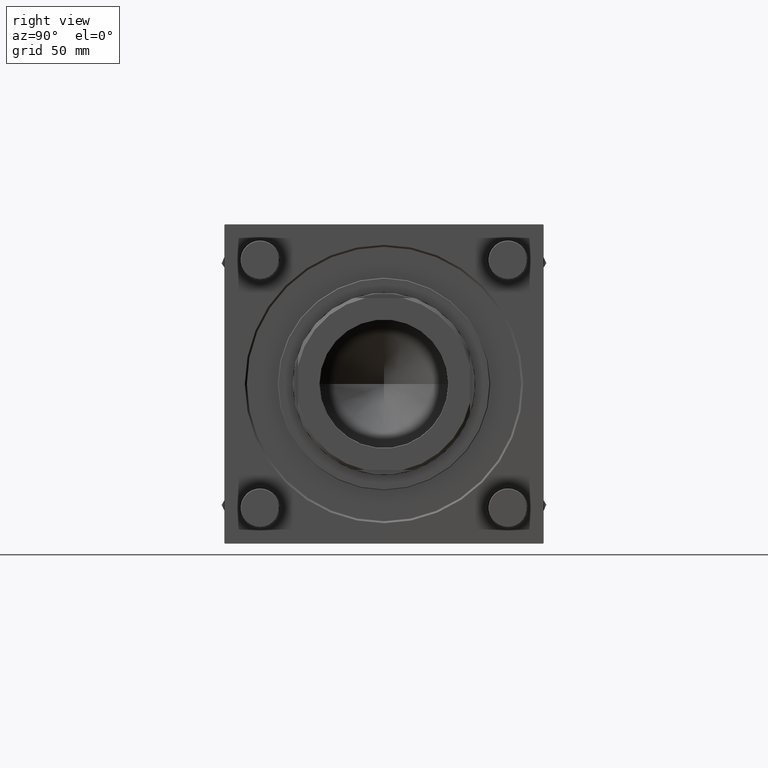
[diagram: clean part render]
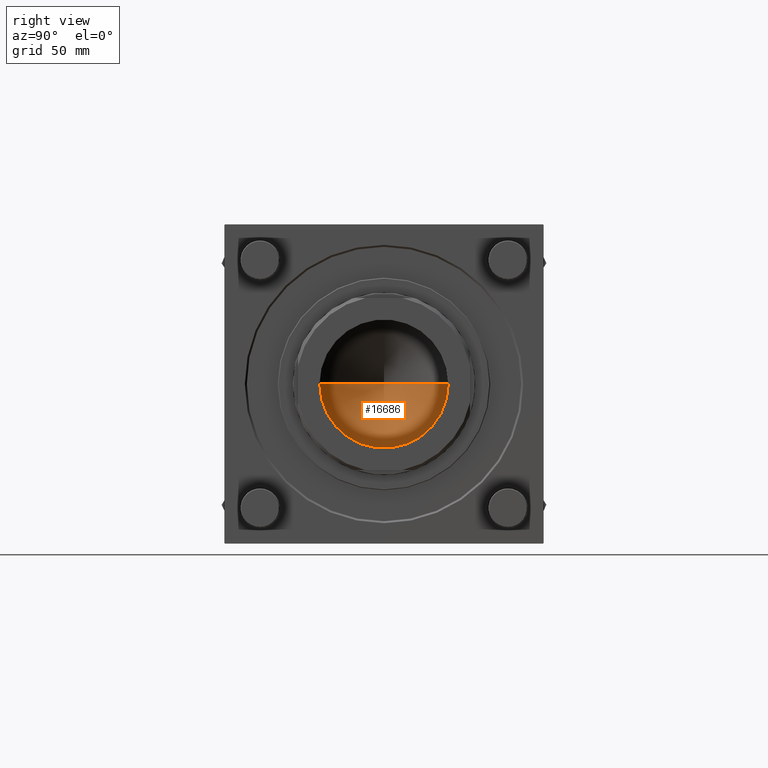
[diagram: same view with one face highlighted and labeled with its STEP entity id]
A machine part, right view. The second image highlights one B-rep face of the part: STEP entity #16686.
In plain terms, the highlighted conical surface has half-angle 59 deg.
Its self-contained STEP definition (entity closure, byte-faithful):
#319 = ORIENTED_EDGE ( 'NONE', *, *, #30998, .T. ) ;
#553 = ORIENTED_EDGE ( 'NONE', *, *, #38175, .F. ) ;
#995 = CARTESIAN_POINT ( 'NONE',  ( -49.24999999999997868, 6.031385485800712357E-15, 128.0000000000000000 ) ) ;
#1155 = FACE_OUTER_BOUND ( 'NONE', #24753, .T. ) ;
#2143 = CARTESIAN_POINT ( 'NONE',  ( 49.24999999999997868, 0.000000000000000000, 128.0000000000000000 ) ) ;
#2172 = CARTESIAN_POINT ( 'NONE',  ( 0.000000000000000000, 0.000000000000000000, 128.0000000000000000 ) ) ;
#2425 = VECTOR ( 'NONE', #52759, 1000.000000000000000 ) ;
#6372 = CARTESIAN_POINT ( 'NONE',  ( 0.000000000000000000, 0.000000000000000000, 128.0000000000000000 ) ) ;
#7087 = EDGE_CURVE ( 'NONE', #28257, #45314, #30518, .T. ) ;
#9074 = DIRECTION ( 'NONE',  ( -0.8571673007021117785, 1.049727191138617956E-16, 0.5150380749100550437 ) ) ;
#9798 = AXIS2_PLACEMENT_3D ( 'NONE', #2172, #19847, #32298 ) ;
#12291 = CONICAL_SURFACE ( 'NONE', #44654, 49.24999999999997868, 1.029744258676653423 ) ;
#14762 = DIRECTION ( 'NONE',  ( -0.000000000000000000, -0.000000000000000000, 1.000000000000000000 ) ) ;
#16686 = ADVANCED_FACE ( 'NONE', ( #1155 ), #12291, .F. ) ;
#19847 = DIRECTION ( 'NONE',  ( -0.000000000000000000, -0.000000000000000000, 1.000000000000000000 ) ) ;
#21237 = ORIENTED_EDGE ( 'NONE', *, *, #7087, .T. ) ;
#24753 = EDGE_LOOP ( 'NONE', ( #553, #21237, #319 ) ) ;
#27517 = DIRECTION ( 'NONE',  ( 1.000000000000000000, 0.000000000000000000, 0.000000000000000000 ) ) ;
#28257 = VERTEX_POINT ( 'NONE', #48349 ) ;
#30518 = LINE ( 'NONE', #39469, #2425 ) ;
#30998 = EDGE_CURVE ( 'NONE', #45314, #41198, #34777, .T. ) ;
#32298 = DIRECTION ( 'NONE',  ( 1.000000000000000000, 0.000000000000000000, 0.000000000000000000 ) ) ;
#34777 = CIRCLE ( 'NONE', #9798, 49.24999999999997868 ) ;
#35409 = CARTESIAN_POINT ( 'NONE',  ( -49.24999999999997868, 6.031385485800712357E-15, 128.0000000000000000 ) ) ;
#36880 = VECTOR ( 'NONE', #9074, 1000.000000000000000 ) ;
#38175 = EDGE_CURVE ( 'NONE', #28257, #41198, #53601, .T. ) ;
#39469 = CARTESIAN_POINT ( 'NONE',  ( 49.24999999999997868, 0.000000000000000000, 128.0000000000000000 ) ) ;
#41198 = VERTEX_POINT ( 'NONE', #995 ) ;
#44654 = AXIS2_PLACEMENT_3D ( 'NONE', #6372, #14762, #27517 ) ;
#45314 = VERTEX_POINT ( 'NONE', #2143 ) ;
#48349 = CARTESIAN_POINT ( 'NONE',  ( -3.318838890392715616E-14, 0.000000000000000000, 98.40761451289262141 ) ) ;
#52759 = DIRECTION ( 'NONE',  ( 0.8571673007021117785, 0.000000000000000000, 0.5150380749100550437 ) ) ;
#53601 = LINE ( 'NONE', #35409, #36880 ) ;